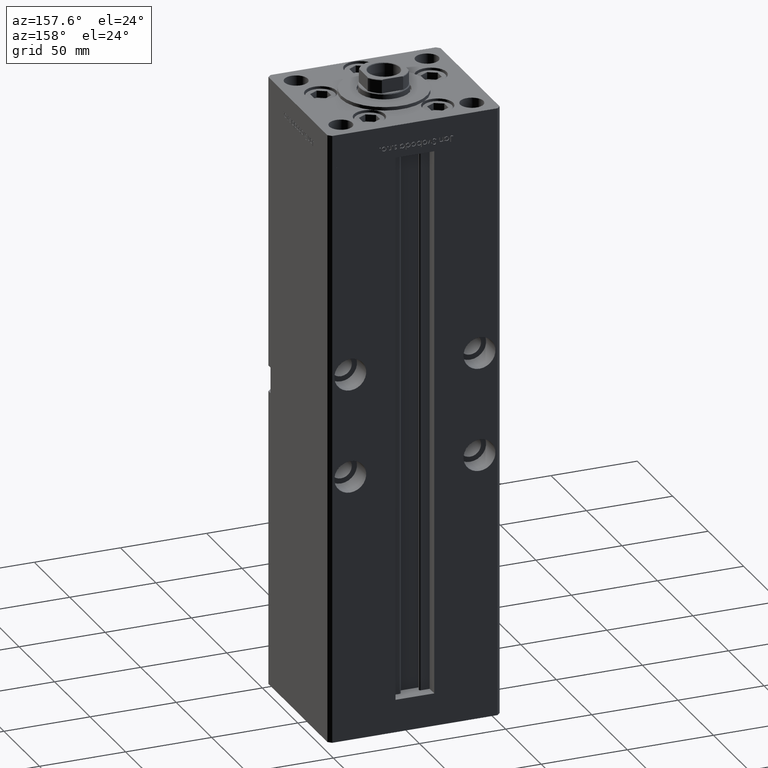
[diagram: clean part render]
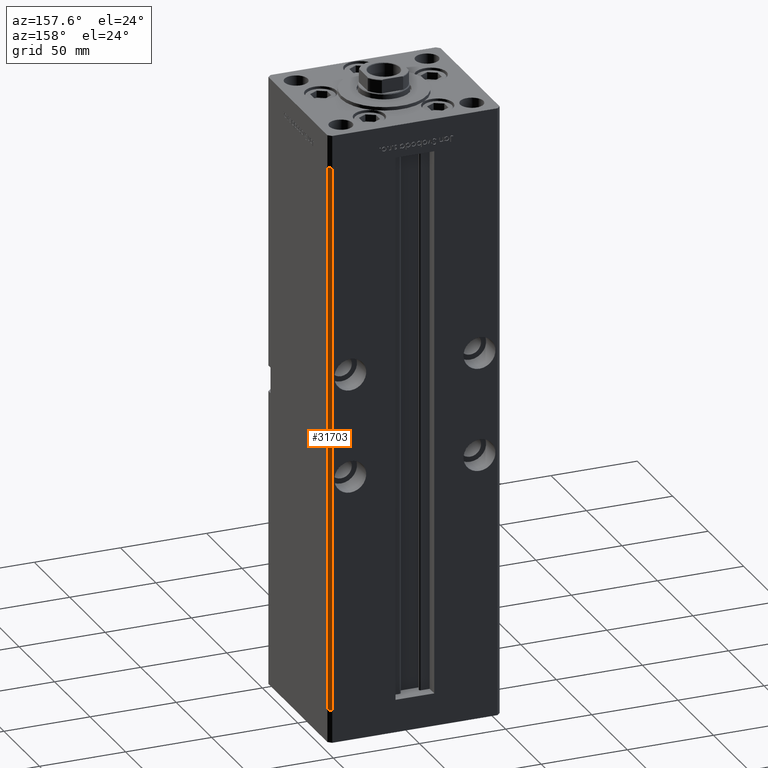
[diagram: same view with one face highlighted and labeled with its STEP entity id]
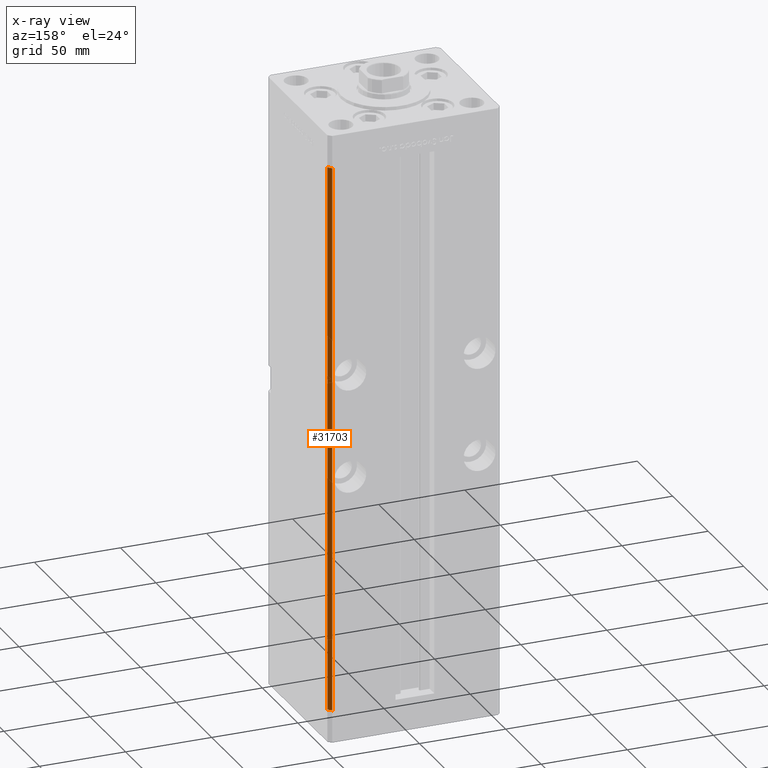
[diagram: x-ray of the same camera — body ghosted, the highlighted face saturated]
A machine part, auxiliary view. The second image highlights one B-rep face of the part: STEP entity #31703.
The next image is the same camera in x-ray: the body ghosted, the highlighted face saturated — about 0% of this face is hidden behind the body in this view.
In plain terms, the highlighted planar face has unit normal (0.7071, 0.7071, 0).
Its self-contained STEP definition (entity closure, byte-faithful):
#957 = ORIENTED_EDGE ( 'NONE', *, *, #33474, .F. ) ;
#1324 = DIRECTION ( 'NONE',  ( -0.000000000000000000, -0.000000000000000000, -1.000000000000000000 ) ) ;
#1694 = VECTOR ( 'NONE', #50273, 1000.000000000000000 ) ;
#2059 = VERTEX_POINT ( 'NONE', #28812 ) ;
#2189 = DIRECTION ( 'NONE',  ( 0.7071067811865463515, 0.7071067811865487940, -0.000000000000000000 ) ) ;
#2871 = VERTEX_POINT ( 'NONE', #12008 ) ;
#4532 = ORIENTED_EDGE ( 'NONE', *, *, #35752, .T. ) ;
#9139 = CARTESIAN_POINT ( 'NONE',  ( 50.00000000000001421, 41.49999999999999289, 318.5000000000000000 ) ) ;
#12008 = CARTESIAN_POINT ( 'NONE',  ( 50.00000000000001421, 41.49999999999999289, 0.000000000000000000 ) ) ;
#12258 = EDGE_LOOP ( 'NONE', ( #33222, #957, #31640, #4532 ) ) ;
#15385 = LINE ( 'NONE', #48157, #50116 ) ;
#16079 = EDGE_CURVE ( 'NONE', #2059, #33553, #37405, .T. ) ;
#16452 = CARTESIAN_POINT ( 'NONE',  ( 48.00000000000000711, 43.50000000000000000, 318.5000000000000000 ) ) ;
#22625 = CARTESIAN_POINT ( 'NONE',  ( 48.00000000000000711, 43.50000000000000000, 318.5000000000000000 ) ) ;
#23980 = DIRECTION ( 'NONE',  ( 0.7071067811865487940, -0.7071067811865463515, 0.000000000000000000 ) ) ;
#25061 = VECTOR ( 'NONE', #23980, 1000.000000000000000 ) ;
#27905 = VECTOR ( 'NONE', #1324, 1000.000000000000000 ) ;
#28812 = CARTESIAN_POINT ( 'NONE',  ( 48.00000000000000711, 43.50000000000000000, 318.5000000000000000 ) ) ;
#31640 = ORIENTED_EDGE ( 'NONE', *, *, #16079, .T. ) ;
#31703 = ADVANCED_FACE ( 'NONE', ( #47077 ), #43043, .T. ) ;
#33222 = ORIENTED_EDGE ( 'NONE', *, *, #48387, .F. ) ;
#33445 = CARTESIAN_POINT ( 'NONE',  ( 48.00000000000000711, 43.50000000000000000, 0.000000000000000000 ) ) ;
#33474 = EDGE_CURVE ( 'NONE', #2059, #46493, #15385, .T. ) ;
#33553 = VERTEX_POINT ( 'NONE', #45396 ) ;
#35752 = EDGE_CURVE ( 'NONE', #33553, #2871, #37628, .T. ) ;
#37405 = LINE ( 'NONE', #16452, #1694 ) ;
#37628 = LINE ( 'NONE', #9139, #27905 ) ;
#38075 = AXIS2_PLACEMENT_3D ( 'NONE', #22625, #2189, #43317 ) ;
#40363 = DIRECTION ( 'NONE',  ( -0.000000000000000000, -0.000000000000000000, -1.000000000000000000 ) ) ;
#43043 = PLANE ( 'NONE',  #38075 ) ;
#43317 = DIRECTION ( 'NONE',  ( -0.7071067811865487940, 0.7071067811865463515, 0.000000000000000000 ) ) ;
#43359 = CARTESIAN_POINT ( 'NONE',  ( 48.00000000000000711, 43.50000000000000000, 0.000000000000000000 ) ) ;
#45396 = CARTESIAN_POINT ( 'NONE',  ( 50.00000000000001421, 41.49999999999999289, 318.5000000000000000 ) ) ;
#46493 = VERTEX_POINT ( 'NONE', #33445 ) ;
#47077 = FACE_OUTER_BOUND ( 'NONE', #12258, .T. ) ;
#48157 = CARTESIAN_POINT ( 'NONE',  ( 48.00000000000000711, 43.50000000000000000, 318.5000000000000000 ) ) ;
#48173 = LINE ( 'NONE', #43359, #25061 ) ;
#48387 = EDGE_CURVE ( 'NONE', #46493, #2871, #48173, .T. ) ;
#50116 = VECTOR ( 'NONE', #40363, 1000.000000000000000 ) ;
#50273 = DIRECTION ( 'NONE',  ( 0.7071067811865487940, -0.7071067811865463515, 0.000000000000000000 ) ) ;